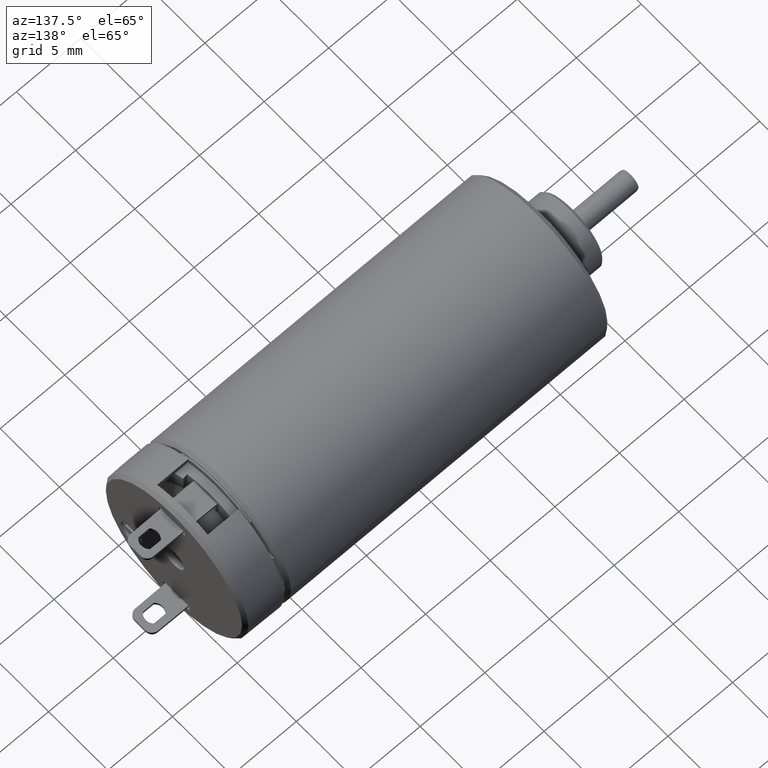
[diagram: clean part render]
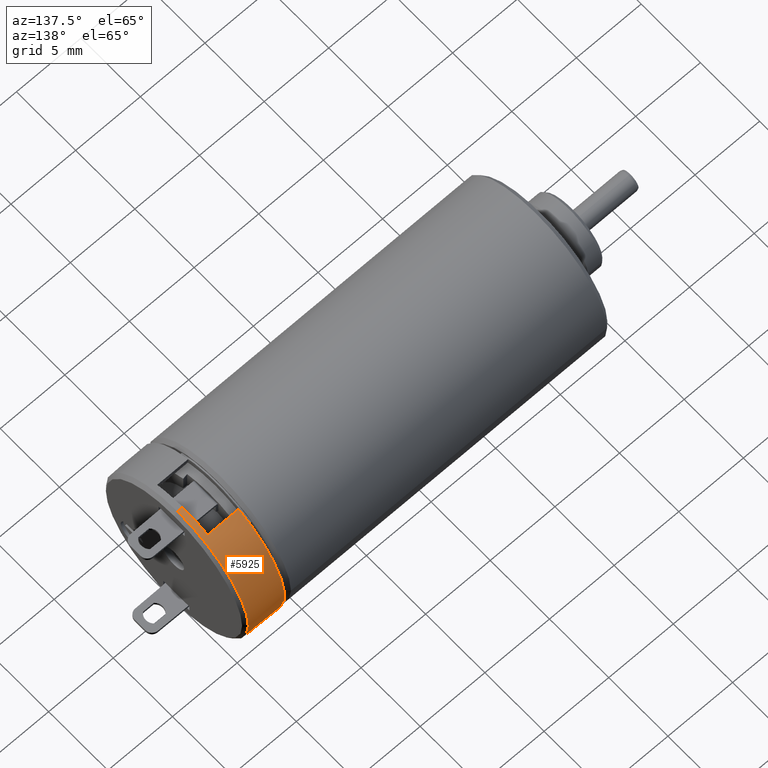
[diagram: same view with one face highlighted and labeled with its STEP entity id]
A machine part, auxiliary view. The second image highlights one B-rep face of the part: STEP entity #5925.
In plain terms, the highlighted cylindrical surface (partial cylindrical patch) has radius 6 mm, axis along (-1, 0, 0).
Its self-contained STEP definition (entity closure, byte-faithful):
#1467=DIRECTION('',(9.999999999998E-1,-3.270413847594E-10,-5.618946467601E-7));
#1468=VECTOR('',#1467,3.999997752629E-1);
#1469=CARTESIAN_POINT('',(1.965E1,0.E0,6.E0));
#1470=LINE('',#1469,#1468);
#1471=DIRECTION('',(-9.999999999998E-1,-3.307632162514E-10,-5.618946423192E-7));
#1472=VECTOR('',#1471,3.999997752629E-1);
#1473=CARTESIAN_POINT('',(2.004999977526E1,1.323053601955E-10,
-5.999999775242E0));
#1474=LINE('',#1473,#1472);
#1561=DIRECTION('',(1.E0,0.E0,0.E0));
#1562=VECTOR('',#1561,2.4E0);
#1563=CARTESIAN_POINT('',(1.725E1,2.131181949838E0,-5.608748835229E0));
#1564=LINE('',#1563,#1562);
#1570=CARTESIAN_POINT('',(1.965E1,0.E0,0.E0));
#1571=DIRECTION('',(-1.E0,0.E0,0.E0));
#1572=DIRECTION('',(0.E0,3.551969916397E-1,-9.347914725382E-1));
#1573=AXIS2_PLACEMENT_3D('',#1570,#1571,#1572);
#1685=CARTESIAN_POINT('',(2.004999955053E1,0.E0,1.102722313147E-14));
#1686=DIRECTION('',(-1.E0,0.E0,0.E0));
#1687=DIRECTION('',(0.E0,-2.059349286905E-13,1.E0));
#1688=AXIS2_PLACEMENT_3D('',#1685,#1686,#1687);
#2108=CARTESIAN_POINT('',(1.965E1,0.E0,0.E0));
#2109=DIRECTION('',(-1.E0,0.E0,0.E0));
#2110=DIRECTION('',(0.E0,0.E0,1.E0));
#2111=AXIS2_PLACEMENT_3D('',#2108,#2109,#2110);
#2163=DIRECTION('',(1.E0,0.E0,0.E0));
#2164=VECTOR('',#2163,2.4E0);
#2165=CARTESIAN_POINT('',(1.725E1,2.131181949837E0,5.608748835229E0));
#2166=LINE('',#2165,#2164);
#2176=CARTESIAN_POINT('',(1.725E1,0.E0,0.E0));
#2177=DIRECTION('',(-1.E0,0.E0,0.E0));
#2178=DIRECTION('',(0.E0,3.551969916397E-1,9.347914725382E-1));
#2179=AXIS2_PLACEMENT_3D('',#2176,#2177,#2178);
#3510=CARTESIAN_POINT('',(1.725E1,2.131181949838E0,-5.608748835229E0));
#3512=VERTEX_POINT('',#3510);
#3514=CARTESIAN_POINT('',(1.725E1,2.131181949838E0,5.608748835229E0));
#3515=VERTEX_POINT('',#3514);
#3534=CARTESIAN_POINT('',(1.965E1,2.131181949838E0,-5.608748835229E0));
#3535=VERTEX_POINT('',#3534);
#3539=CARTESIAN_POINT('',(1.965E1,0.E0,-6.E0));
#3540=VERTEX_POINT('',#3539);
#3541=CARTESIAN_POINT('',(2.004999977526E1,1.323053601955E-10,
-5.999999775242E0));
#3542=VERTEX_POINT('',#3541);
#3543=CARTESIAN_POINT('',(2.004999955053E1,-1.235609479572E-12,
5.999999550485E0));
#3544=VERTEX_POINT('',#3543);
#3545=CARTESIAN_POINT('',(1.965E1,0.E0,6.E0));
#3546=VERTEX_POINT('',#3545);
#3547=CARTESIAN_POINT('',(1.965E1,2.131181949838E0,5.608748835229E0));
#3548=VERTEX_POINT('',#3547);
#5905=CARTESIAN_POINT('',(2.010600176718E1,0.E0,0.E0));
#5906=DIRECTION('',(-1.E0,0.E0,0.E0));
#5907=DIRECTION('',(0.E0,0.E0,-1.E0));
#5908=AXIS2_PLACEMENT_3D('',#5905,#5906,#5907);
#5909=CYLINDRICAL_SURFACE('',#5908,6.E0);
#5911=ORIENTED_EDGE('',*,*,#5910,.T.);
#5912=ORIENTED_EDGE('',*,*,#5777,.F.);
#5914=ORIENTED_EDGE('',*,*,#5913,.F.);
#5915=ORIENTED_EDGE('',*,*,#5773,.F.);
#5917=ORIENTED_EDGE('',*,*,#5916,.T.);
#5919=ORIENTED_EDGE('',*,*,#5918,.F.);
#5921=ORIENTED_EDGE('',*,*,#5920,.T.);
#5922=ORIENTED_EDGE('',*,*,#5893,.T.);
#5923=EDGE_LOOP('',(#5911,#5912,#5914,#5915,#5917,#5919,#5921,#5922));
#5924=FACE_OUTER_BOUND('',#5923,.F.);
#5925=ADVANCED_FACE('',(#5924),#5909,.T.);
#1574=CIRCLE('',#1573,6.E0);
#1689=CIRCLE('',#1688,5.999999550485E0);
#2112=CIRCLE('',#2111,6.E0);
#2180=CIRCLE('',#2179,6.E0);
#5773=EDGE_CURVE('',#3546,#3544,#1470,.T.);
#5777=EDGE_CURVE('',#3542,#3540,#1474,.T.);
#5893=EDGE_CURVE('',#3512,#3535,#1564,.T.);
#5910=EDGE_CURVE('',#3535,#3540,#1574,.T.);
#5913=EDGE_CURVE('',#3544,#3542,#1689,.T.);
#5916=EDGE_CURVE('',#3546,#3548,#2112,.T.);
#5918=EDGE_CURVE('',#3515,#3548,#2166,.T.);
#5920=EDGE_CURVE('',#3515,#3512,#2180,.T.);